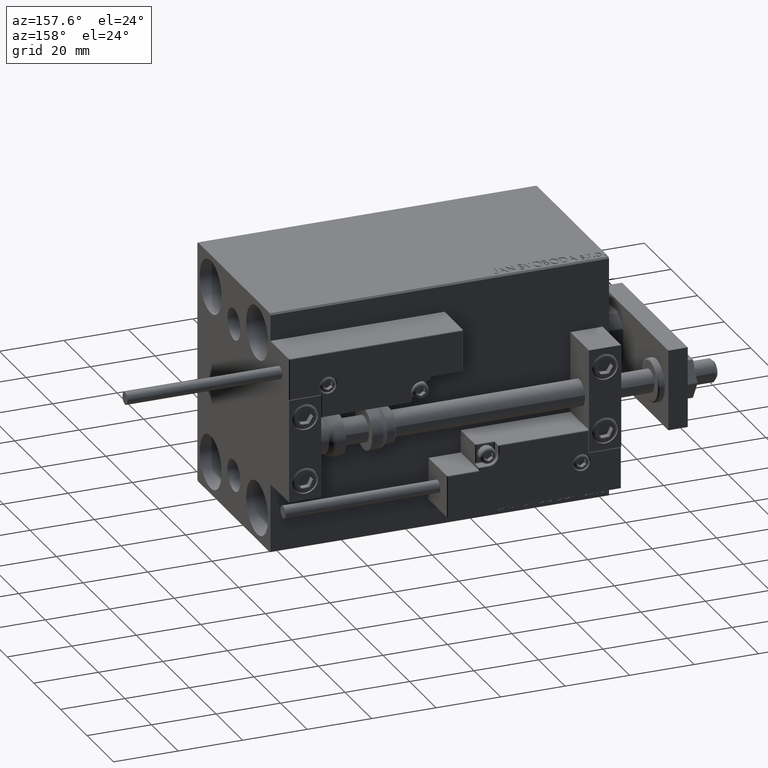
[diagram: clean part render]
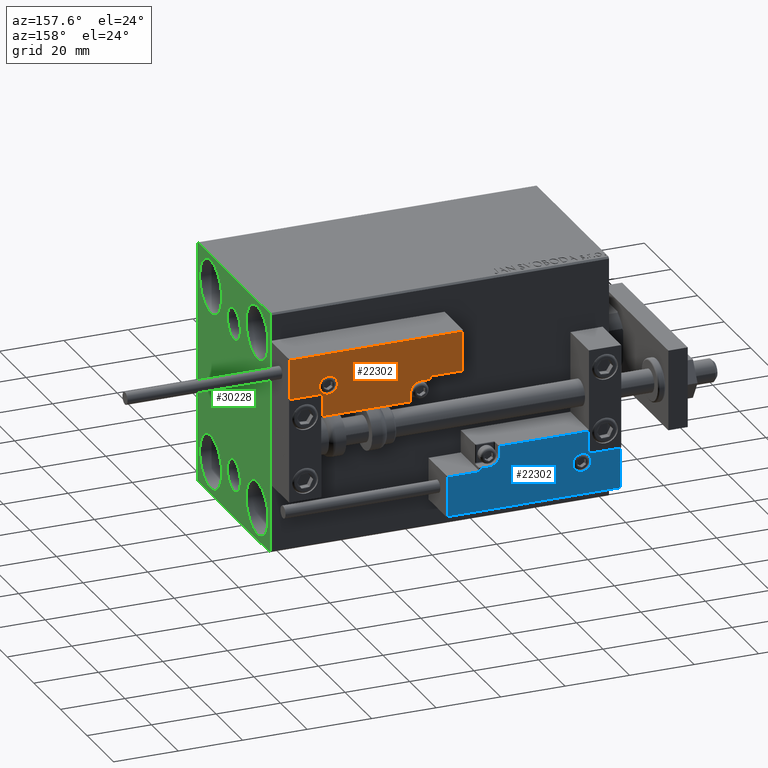
[diagram: same view with three faces highlighted in distinct colors, each labeled with its STEP entity id]
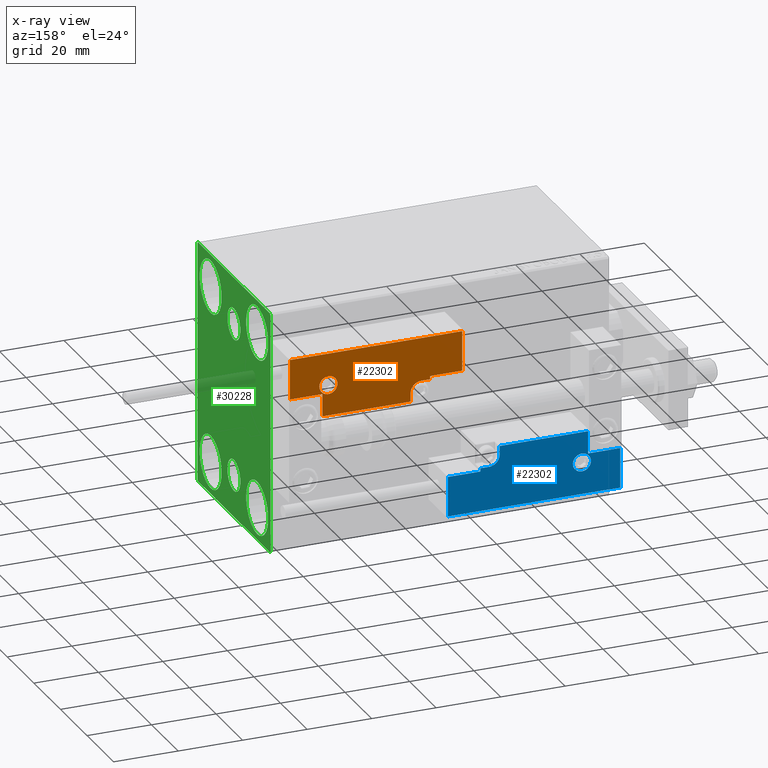
[diagram: x-ray of the same camera — body ghosted, the three highlighted faces saturated]
A machine part, auxiliary view with three faces highlighted in distinct colors.
The next image is the same camera in x-ray (body ghosted, the three faces saturated) — at least one of them is partly hidden behind the body in this view.
Their STEP definitions:

[orange] entity #22302 — the highlighted planar face has unit normal (0, 1, -0).
#29 = EDGE_CURVE ( 'NONE', #42501, #8746, #28065, .T. ) ;
#870 = ORIENTED_EDGE ( 'NONE', *, *, #16621, .T. ) ;
#2062 = VERTEX_POINT ( 'NONE', #37294 ) ;
#2681 = VECTOR ( 'NONE', #44411, 1000.000000000000000 ) ;
#2742 = VECTOR ( 'NONE', #9848, 1000.000000000000000 ) ;
#3233 = VECTOR ( 'NONE', #9415, 1000.000000000000000 ) ;
#3568 = VERTEX_POINT ( 'NONE', #37747 ) ;
#4890 = CARTESIAN_POINT ( 'NONE',  ( -26.69999999999993534, 19.70000000000002061, 14.00000000000000000 ) ) ;
#5292 = EDGE_CURVE ( 'NONE', #3568, #31690, #37111, .T. ) ;
#5373 = LINE ( 'NONE', #28575, #3233 ) ;
#5446 = DIRECTION ( 'NONE',  ( 0.000000000000000000, 1.000000000000000000, -0.000000000000000000 ) ) ;
#5642 = CARTESIAN_POINT ( 'NONE',  ( -11.99999999999994849, 9.800000000000004263, 14.00000000000000000 ) ) ;
#6202 = CARTESIAN_POINT ( 'NONE',  ( 0.000000000000000000, 0.000000000000000000, 14.00000000000000000 ) ) ;
#6582 = VERTEX_POINT ( 'NONE', #18031 ) ;
#7151 = CARTESIAN_POINT ( 'NONE',  ( 26.70000000000006324, 7.300000000000007816, 14.00000000000000000 ) ) ;
#7280 = AXIS2_PLACEMENT_3D ( 'NONE', #17827, #37504, #47882 ) ;
#7942 = ORIENTED_EDGE ( 'NONE', *, *, #18025, .T. ) ;
#7973 = VERTEX_POINT ( 'NONE', #18975 ) ;
#8400 = ORIENTED_EDGE ( 'NONE', *, *, #24188, .T. ) ;
#8734 = CARTESIAN_POINT ( 'NONE',  ( 26.70000000000006324, 20.00000000000001776, 14.00000000000000000 ) ) ;
#8746 = VERTEX_POINT ( 'NONE', #5642 ) ;
#9078 = LINE ( 'NONE', #17641, #16470 ) ;
#9415 = DIRECTION ( 'NONE',  ( -0.000000000000000000, 1.000000000000000000, -0.000000000000000000 ) ) ;
#9848 = DIRECTION ( 'NONE',  ( 9.912705577010318647E-16, 1.000000000000000000, 0.000000000000000000 ) ) ;
#10471 = EDGE_CURVE ( 'NONE', #7973, #2062, #13538, .T. ) ;
#10627 = ORIENTED_EDGE ( 'NONE', *, *, #10471, .T. ) ;
#10763 = CARTESIAN_POINT ( 'NONE',  ( 16.69999999999999929, 7.300000000000009592, 14.00000000000000000 ) ) ;
#10797 = VERTEX_POINT ( 'NONE', #4890 ) ;
#12913 = DIRECTION ( 'NONE',  ( -1.000000000000000000, 6.424901762877063495E-17, -0.000000000000000000 ) ) ;
#13538 = LINE ( 'NONE', #31983, #20223 ) ;
#13612 = DIRECTION ( 'NONE',  ( 1.000000000000000000, -1.734723475976796001E-16, 0.000000000000000000 ) ) ;
#13828 = CARTESIAN_POINT ( 'NONE',  ( 11.00000000000000000, 0.3000000000000032085, 14.00000000000000000 ) ) ;
#13921 = VECTOR ( 'NONE', #5446, 1000.000000000000000 ) ;
#14151 = ORIENTED_EDGE ( 'NONE', *, *, #35284, .T. ) ;
#14276 = EDGE_CURVE ( 'NONE', #47846, #42761, #32997, .T. ) ;
#14679 = EDGE_CURVE ( 'NONE', #18952, #45186, #40266, .T. ) ;
#15231 = EDGE_CURVE ( 'NONE', #45186, #10797, #35124, .T. ) ;
#16470 = VECTOR ( 'NONE', #13612, 1000.000000000000000 ) ;
#16521 = EDGE_LOOP ( 'NONE', ( #7942, #48864, #47063, #18900, #870, #17695, #8400, #48278, #41763, #22759, #10627 ) ) ;
#16563 = EDGE_CURVE ( 'NONE', #10797, #7973, #24969, .T. ) ;
#16621 = EDGE_CURVE ( 'NONE', #31690, #6582, #35827, .T. ) ;
#17392 = CARTESIAN_POINT ( 'NONE',  ( -17.59999999999994813, 9.800000000000004263, 14.00000000000000000 ) ) ;
#17641 = CARTESIAN_POINT ( 'NONE',  ( 27.00000000000006395, 7.300000000000007816, 14.00000000000000000 ) ) ;
#17695 = ORIENTED_EDGE ( 'NONE', *, *, #21179, .T. ) ;
#17827 = CARTESIAN_POINT ( 'NONE',  ( 13.99999999999999822, 3.000000000000002665, 14.00000000000000000 ) ) ;
#17845 = CARTESIAN_POINT ( 'NONE',  ( -16.69999999999999218, 3.252606517456513302E-15, 14.00000000000000000 ) ) ;
#17947 = VECTOR ( 'NONE', #29711, 1000.000000000000000 ) ;
#18025 = EDGE_CURVE ( 'NONE', #2062, #47846, #21629, .T. ) ;
#18031 = CARTESIAN_POINT ( 'NONE',  ( 16.69999999999999929, 6.300000000000003375, 14.00000000000000000 ) ) ;
#18106 = DIRECTION ( 'NONE',  ( 1.000000000000000000, 0.000000000000000000, 0.000000000000000000 ) ) ;
#18171 = ORIENTED_EDGE ( 'NONE', *, *, #29, .T. ) ;
#18900 = ORIENTED_EDGE ( 'NONE', *, *, #5292, .T. ) ;
#18952 = VERTEX_POINT ( 'NONE', #7151 ) ;
#18975 = CARTESIAN_POINT ( 'NONE',  ( -26.69999999999994600, 7.300000000000005151, 14.00000000000000000 ) ) ;
#19342 = EDGE_LOOP ( 'NONE', ( #14151, #18171 ) ) ;
#19546 = CARTESIAN_POINT ( 'NONE',  ( 13.99999999999999822, 6.300000000000001599, 14.00000000000000000 ) ) ;
#20223 = VECTOR ( 'NONE', #47126, 1000.000000000000000 ) ;
#20947 = DIRECTION ( 'NONE',  ( 1.000000000000000000, 5.782411586589357639E-16, -0.000000000000000000 ) ) ;
#21149 = VECTOR ( 'NONE', #12913, 1000.000000000000000 ) ;
#21179 = EDGE_CURVE ( 'NONE', #6582, #49733, #33308, .T. ) ;
#21571 = CIRCLE ( 'NONE', #23982, 2.800000000000000266 ) ;
#21629 = LINE ( 'NONE', #17845, #33366 ) ;
#22302 = ADVANCED_FACE ( 'NONE', ( #40524, #47869 ), #36736, .T. ) ;
#22759 = ORIENTED_EDGE ( 'NONE', *, *, #16563, .T. ) ;
#23982 = AXIS2_PLACEMENT_3D ( 'NONE', #35507, #28421, #31730 ) ;
#24188 = EDGE_CURVE ( 'NONE', #49733, #18952, #9078, .T. ) ;
#24346 = CARTESIAN_POINT ( 'NONE',  ( 10.69999999999999929, 0.3000000000000032085, 14.00000000000000000 ) ) ;
#24969 = LINE ( 'NONE', #40612, #2681 ) ;
#25214 = CARTESIAN_POINT ( 'NONE',  ( 17.00000000000000000, 6.300000000000003375, 14.00000000000000000 ) ) ;
#25378 = DIRECTION ( 'NONE',  ( -0.000000000000000000, 0.000000000000000000, 1.000000000000000000 ) ) ;
#26443 = AXIS2_PLACEMENT_3D ( 'NONE', #44869, #34002, #18106 ) ;
#26900 = AXIS2_PLACEMENT_3D ( 'NONE', #6202, #25378, #33209 ) ;
#28065 = CIRCLE ( 'NONE', #26443, 2.800000000000000266 ) ;
#28421 = DIRECTION ( 'NONE',  ( 0.000000000000000000, -0.000000000000000000, -1.000000000000000000 ) ) ;
#28575 = CARTESIAN_POINT ( 'NONE',  ( 10.69999999999999929, 3.000000000000003109, 14.00000000000000000 ) ) ;
#29711 = DIRECTION ( 'NONE',  ( 1.000000000000000000, -0.000000000000000000, 0.000000000000000000 ) ) ;
#31224 = CARTESIAN_POINT ( 'NONE',  ( -16.69999999999999218, 0.3000000000000032085, 14.00000000000000000 ) ) ;
#31690 = VERTEX_POINT ( 'NONE', #19546 ) ;
#31712 = VECTOR ( 'NONE', #20947, 1000.000000000000000 ) ;
#31730 = DIRECTION ( 'NONE',  ( 1.000000000000000000, 0.000000000000000000, 0.000000000000000000 ) ) ;
#31983 = CARTESIAN_POINT ( 'NONE',  ( -16.99999999999999289, 7.300000000000003375, 14.00000000000000000 ) ) ;
#32997 = LINE ( 'NONE', #13828, #17947 ) ;
#33209 = DIRECTION ( 'NONE',  ( 1.000000000000000000, 0.000000000000000000, 0.000000000000000000 ) ) ;
#33308 = LINE ( 'NONE', #48714, #2742 ) ;
#33366 = VECTOR ( 'NONE', #38011, 1000.000000000000000 ) ;
#34002 = DIRECTION ( 'NONE',  ( 0.000000000000000000, -0.000000000000000000, -1.000000000000000000 ) ) ;
#35124 = LINE ( 'NONE', #47251, #21149 ) ;
#35284 = EDGE_CURVE ( 'NONE', #8746, #42501, #21571, .T. ) ;
#35507 = CARTESIAN_POINT ( 'NONE',  ( -14.79999999999994920, 9.800000000000004263, 14.00000000000000000 ) ) ;
#35827 = LINE ( 'NONE', #25214, #31712 ) ;
#36736 = PLANE ( 'NONE',  #26900 ) ;
#37111 = CIRCLE ( 'NONE', #7280, 3.299999999999997158 ) ;
#37294 = CARTESIAN_POINT ( 'NONE',  ( -16.69999999999999218, 7.300000000000003375, 14.00000000000000000 ) ) ;
#37504 = DIRECTION ( 'NONE',  ( 0.000000000000000000, -0.000000000000000000, -1.000000000000000000 ) ) ;
#37747 = CARTESIAN_POINT ( 'NONE',  ( 10.69999999999999929, 3.000000000000003109, 14.00000000000000000 ) ) ;
#38011 = DIRECTION ( 'NONE',  ( 0.000000000000000000, -1.000000000000000000, 0.000000000000000000 ) ) ;
#40266 = LINE ( 'NONE', #8734, #13921 ) ;
#40524 = FACE_BOUND ( 'NONE', #19342, .T. ) ;
#40612 = CARTESIAN_POINT ( 'NONE',  ( -26.69999999999994600, 7.000000000000005329, 14.00000000000000000 ) ) ;
#41763 = ORIENTED_EDGE ( 'NONE', *, *, #15231, .T. ) ;
#42501 = VERTEX_POINT ( 'NONE', #17392 ) ;
#42548 = CARTESIAN_POINT ( 'NONE',  ( 26.70000000000006324, 19.70000000000001705, 14.00000000000000000 ) ) ;
#42761 = VERTEX_POINT ( 'NONE', #24346 ) ;
#44411 = DIRECTION ( 'NONE',  ( -8.006416042969869188E-16, -1.000000000000000000, 0.000000000000000000 ) ) ;
#44869 = CARTESIAN_POINT ( 'NONE',  ( -14.79999999999994920, 9.800000000000004263, 14.00000000000000000 ) ) ;
#45186 = VERTEX_POINT ( 'NONE', #42548 ) ;
#45658 = EDGE_CURVE ( 'NONE', #42761, #3568, #5373, .T. ) ;
#47063 = ORIENTED_EDGE ( 'NONE', *, *, #45658, .T. ) ;
#47126 = DIRECTION ( 'NONE',  ( 1.000000000000000000, -1.734723475976815230E-16, 0.000000000000000000 ) ) ;
#47251 = CARTESIAN_POINT ( 'NONE',  ( -26.99999999999993605, 19.70000000000002061, 14.00000000000000000 ) ) ;
#47846 = VERTEX_POINT ( 'NONE', #31224 ) ;
#47869 = FACE_OUTER_BOUND ( 'NONE', #16521, .T. ) ;
#47882 = DIRECTION ( 'NONE',  ( 1.000000000000000000, 0.000000000000000000, 0.000000000000000000 ) ) ;
#48278 = ORIENTED_EDGE ( 'NONE', *, *, #14679, .T. ) ;
#48714 = CARTESIAN_POINT ( 'NONE',  ( 16.69999999999999929, 7.000000000000009770, 14.00000000000000000 ) ) ;
#48864 = ORIENTED_EDGE ( 'NONE', *, *, #14276, .T. ) ;
#49733 = VERTEX_POINT ( 'NONE', #10763 ) ;

[blue] entity #22302 — the highlighted planar face has unit normal (-0, 1, -0).
#29 = EDGE_CURVE ( 'NONE', #42501, #8746, #28065, .T. ) ;
#870 = ORIENTED_EDGE ( 'NONE', *, *, #16621, .T. ) ;
#2062 = VERTEX_POINT ( 'NONE', #37294 ) ;
#2681 = VECTOR ( 'NONE', #44411, 1000.000000000000000 ) ;
#2742 = VECTOR ( 'NONE', #9848, 1000.000000000000000 ) ;
#3233 = VECTOR ( 'NONE', #9415, 1000.000000000000000 ) ;
#3568 = VERTEX_POINT ( 'NONE', #37747 ) ;
#4890 = CARTESIAN_POINT ( 'NONE',  ( -26.69999999999993534, 19.70000000000002061, 14.00000000000000000 ) ) ;
#5292 = EDGE_CURVE ( 'NONE', #3568, #31690, #37111, .T. ) ;
#5373 = LINE ( 'NONE', #28575, #3233 ) ;
#5446 = DIRECTION ( 'NONE',  ( 0.000000000000000000, 1.000000000000000000, -0.000000000000000000 ) ) ;
#5642 = CARTESIAN_POINT ( 'NONE',  ( -11.99999999999994849, 9.800000000000004263, 14.00000000000000000 ) ) ;
#6202 = CARTESIAN_POINT ( 'NONE',  ( 0.000000000000000000, 0.000000000000000000, 14.00000000000000000 ) ) ;
#6582 = VERTEX_POINT ( 'NONE', #18031 ) ;
#7151 = CARTESIAN_POINT ( 'NONE',  ( 26.70000000000006324, 7.300000000000007816, 14.00000000000000000 ) ) ;
#7280 = AXIS2_PLACEMENT_3D ( 'NONE', #17827, #37504, #47882 ) ;
#7942 = ORIENTED_EDGE ( 'NONE', *, *, #18025, .T. ) ;
#7973 = VERTEX_POINT ( 'NONE', #18975 ) ;
#8400 = ORIENTED_EDGE ( 'NONE', *, *, #24188, .T. ) ;
#8734 = CARTESIAN_POINT ( 'NONE',  ( 26.70000000000006324, 20.00000000000001776, 14.00000000000000000 ) ) ;
#8746 = VERTEX_POINT ( 'NONE', #5642 ) ;
#9078 = LINE ( 'NONE', #17641, #16470 ) ;
#9415 = DIRECTION ( 'NONE',  ( -0.000000000000000000, 1.000000000000000000, -0.000000000000000000 ) ) ;
#9848 = DIRECTION ( 'NONE',  ( 9.912705577010318647E-16, 1.000000000000000000, 0.000000000000000000 ) ) ;
#10471 = EDGE_CURVE ( 'NONE', #7973, #2062, #13538, .T. ) ;
#10627 = ORIENTED_EDGE ( 'NONE', *, *, #10471, .T. ) ;
#10763 = CARTESIAN_POINT ( 'NONE',  ( 16.69999999999999929, 7.300000000000009592, 14.00000000000000000 ) ) ;
#10797 = VERTEX_POINT ( 'NONE', #4890 ) ;
#12913 = DIRECTION ( 'NONE',  ( -1.000000000000000000, 6.424901762877063495E-17, -0.000000000000000000 ) ) ;
#13538 = LINE ( 'NONE', #31983, #20223 ) ;
#13612 = DIRECTION ( 'NONE',  ( 1.000000000000000000, -1.734723475976796001E-16, 0.000000000000000000 ) ) ;
#13828 = CARTESIAN_POINT ( 'NONE',  ( 11.00000000000000000, 0.3000000000000032085, 14.00000000000000000 ) ) ;
#13921 = VECTOR ( 'NONE', #5446, 1000.000000000000000 ) ;
#14151 = ORIENTED_EDGE ( 'NONE', *, *, #35284, .T. ) ;
#14276 = EDGE_CURVE ( 'NONE', #47846, #42761, #32997, .T. ) ;
#14679 = EDGE_CURVE ( 'NONE', #18952, #45186, #40266, .T. ) ;
#15231 = EDGE_CURVE ( 'NONE', #45186, #10797, #35124, .T. ) ;
#16470 = VECTOR ( 'NONE', #13612, 1000.000000000000000 ) ;
#16521 = EDGE_LOOP ( 'NONE', ( #7942, #48864, #47063, #18900, #870, #17695, #8400, #48278, #41763, #22759, #10627 ) ) ;
#16563 = EDGE_CURVE ( 'NONE', #10797, #7973, #24969, .T. ) ;
#16621 = EDGE_CURVE ( 'NONE', #31690, #6582, #35827, .T. ) ;
#17392 = CARTESIAN_POINT ( 'NONE',  ( -17.59999999999994813, 9.800000000000004263, 14.00000000000000000 ) ) ;
#17641 = CARTESIAN_POINT ( 'NONE',  ( 27.00000000000006395, 7.300000000000007816, 14.00000000000000000 ) ) ;
#17695 = ORIENTED_EDGE ( 'NONE', *, *, #21179, .T. ) ;
#17827 = CARTESIAN_POINT ( 'NONE',  ( 13.99999999999999822, 3.000000000000002665, 14.00000000000000000 ) ) ;
#17845 = CARTESIAN_POINT ( 'NONE',  ( -16.69999999999999218, 3.252606517456513302E-15, 14.00000000000000000 ) ) ;
#17947 = VECTOR ( 'NONE', #29711, 1000.000000000000000 ) ;
#18025 = EDGE_CURVE ( 'NONE', #2062, #47846, #21629, .T. ) ;
#18031 = CARTESIAN_POINT ( 'NONE',  ( 16.69999999999999929, 6.300000000000003375, 14.00000000000000000 ) ) ;
#18106 = DIRECTION ( 'NONE',  ( 1.000000000000000000, 0.000000000000000000, 0.000000000000000000 ) ) ;
#18171 = ORIENTED_EDGE ( 'NONE', *, *, #29, .T. ) ;
#18900 = ORIENTED_EDGE ( 'NONE', *, *, #5292, .T. ) ;
#18952 = VERTEX_POINT ( 'NONE', #7151 ) ;
#18975 = CARTESIAN_POINT ( 'NONE',  ( -26.69999999999994600, 7.300000000000005151, 14.00000000000000000 ) ) ;
#19342 = EDGE_LOOP ( 'NONE', ( #14151, #18171 ) ) ;
#19546 = CARTESIAN_POINT ( 'NONE',  ( 13.99999999999999822, 6.300000000000001599, 14.00000000000000000 ) ) ;
#20223 = VECTOR ( 'NONE', #47126, 1000.000000000000000 ) ;
#20947 = DIRECTION ( 'NONE',  ( 1.000000000000000000, 5.782411586589357639E-16, -0.000000000000000000 ) ) ;
#21149 = VECTOR ( 'NONE', #12913, 1000.000000000000000 ) ;
#21179 = EDGE_CURVE ( 'NONE', #6582, #49733, #33308, .T. ) ;
#21571 = CIRCLE ( 'NONE', #23982, 2.800000000000000266 ) ;
#21629 = LINE ( 'NONE', #17845, #33366 ) ;
#22302 = ADVANCED_FACE ( 'NONE', ( #40524, #47869 ), #36736, .T. ) ;
#22759 = ORIENTED_EDGE ( 'NONE', *, *, #16563, .T. ) ;
#23982 = AXIS2_PLACEMENT_3D ( 'NONE', #35507, #28421, #31730 ) ;
#24188 = EDGE_CURVE ( 'NONE', #49733, #18952, #9078, .T. ) ;
#24346 = CARTESIAN_POINT ( 'NONE',  ( 10.69999999999999929, 0.3000000000000032085, 14.00000000000000000 ) ) ;
#24969 = LINE ( 'NONE', #40612, #2681 ) ;
#25214 = CARTESIAN_POINT ( 'NONE',  ( 17.00000000000000000, 6.300000000000003375, 14.00000000000000000 ) ) ;
#25378 = DIRECTION ( 'NONE',  ( -0.000000000000000000, 0.000000000000000000, 1.000000000000000000 ) ) ;
#26443 = AXIS2_PLACEMENT_3D ( 'NONE', #44869, #34002, #18106 ) ;
#26900 = AXIS2_PLACEMENT_3D ( 'NONE', #6202, #25378, #33209 ) ;
#28065 = CIRCLE ( 'NONE', #26443, 2.800000000000000266 ) ;
#28421 = DIRECTION ( 'NONE',  ( 0.000000000000000000, -0.000000000000000000, -1.000000000000000000 ) ) ;
#28575 = CARTESIAN_POINT ( 'NONE',  ( 10.69999999999999929, 3.000000000000003109, 14.00000000000000000 ) ) ;
#29711 = DIRECTION ( 'NONE',  ( 1.000000000000000000, -0.000000000000000000, 0.000000000000000000 ) ) ;
#31224 = CARTESIAN_POINT ( 'NONE',  ( -16.69999999999999218, 0.3000000000000032085, 14.00000000000000000 ) ) ;
#31690 = VERTEX_POINT ( 'NONE', #19546 ) ;
#31712 = VECTOR ( 'NONE', #20947, 1000.000000000000000 ) ;
#31730 = DIRECTION ( 'NONE',  ( 1.000000000000000000, 0.000000000000000000, 0.000000000000000000 ) ) ;
#31983 = CARTESIAN_POINT ( 'NONE',  ( -16.99999999999999289, 7.300000000000003375, 14.00000000000000000 ) ) ;
#32997 = LINE ( 'NONE', #13828, #17947 ) ;
#33209 = DIRECTION ( 'NONE',  ( 1.000000000000000000, 0.000000000000000000, 0.000000000000000000 ) ) ;
#33308 = LINE ( 'NONE', #48714, #2742 ) ;
#33366 = VECTOR ( 'NONE', #38011, 1000.000000000000000 ) ;
#34002 = DIRECTION ( 'NONE',  ( 0.000000000000000000, -0.000000000000000000, -1.000000000000000000 ) ) ;
#35124 = LINE ( 'NONE', #47251, #21149 ) ;
#35284 = EDGE_CURVE ( 'NONE', #8746, #42501, #21571, .T. ) ;
#35507 = CARTESIAN_POINT ( 'NONE',  ( -14.79999999999994920, 9.800000000000004263, 14.00000000000000000 ) ) ;
#35827 = LINE ( 'NONE', #25214, #31712 ) ;
#36736 = PLANE ( 'NONE',  #26900 ) ;
#37111 = CIRCLE ( 'NONE', #7280, 3.299999999999997158 ) ;
#37294 = CARTESIAN_POINT ( 'NONE',  ( -16.69999999999999218, 7.300000000000003375, 14.00000000000000000 ) ) ;
#37504 = DIRECTION ( 'NONE',  ( 0.000000000000000000, -0.000000000000000000, -1.000000000000000000 ) ) ;
#37747 = CARTESIAN_POINT ( 'NONE',  ( 10.69999999999999929, 3.000000000000003109, 14.00000000000000000 ) ) ;
#38011 = DIRECTION ( 'NONE',  ( 0.000000000000000000, -1.000000000000000000, 0.000000000000000000 ) ) ;
#40266 = LINE ( 'NONE', #8734, #13921 ) ;
#40524 = FACE_BOUND ( 'NONE', #19342, .T. ) ;
#40612 = CARTESIAN_POINT ( 'NONE',  ( -26.69999999999994600, 7.000000000000005329, 14.00000000000000000 ) ) ;
#41763 = ORIENTED_EDGE ( 'NONE', *, *, #15231, .T. ) ;
#42501 = VERTEX_POINT ( 'NONE', #17392 ) ;
#42548 = CARTESIAN_POINT ( 'NONE',  ( 26.70000000000006324, 19.70000000000001705, 14.00000000000000000 ) ) ;
#42761 = VERTEX_POINT ( 'NONE', #24346 ) ;
#44411 = DIRECTION ( 'NONE',  ( -8.006416042969869188E-16, -1.000000000000000000, 0.000000000000000000 ) ) ;
#44869 = CARTESIAN_POINT ( 'NONE',  ( -14.79999999999994920, 9.800000000000004263, 14.00000000000000000 ) ) ;
#45186 = VERTEX_POINT ( 'NONE', #42548 ) ;
#45658 = EDGE_CURVE ( 'NONE', #42761, #3568, #5373, .T. ) ;
#47063 = ORIENTED_EDGE ( 'NONE', *, *, #45658, .T. ) ;
#47126 = DIRECTION ( 'NONE',  ( 1.000000000000000000, -1.734723475976815230E-16, 0.000000000000000000 ) ) ;
#47251 = CARTESIAN_POINT ( 'NONE',  ( -26.99999999999993605, 19.70000000000002061, 14.00000000000000000 ) ) ;
#47846 = VERTEX_POINT ( 'NONE', #31224 ) ;
#47869 = FACE_OUTER_BOUND ( 'NONE', #16521, .T. ) ;
#47882 = DIRECTION ( 'NONE',  ( 1.000000000000000000, 0.000000000000000000, 0.000000000000000000 ) ) ;
#48278 = ORIENTED_EDGE ( 'NONE', *, *, #14679, .T. ) ;
#48714 = CARTESIAN_POINT ( 'NONE',  ( 16.69999999999999929, 7.000000000000009770, 14.00000000000000000 ) ) ;
#48864 = ORIENTED_EDGE ( 'NONE', *, *, #14276, .T. ) ;
#49733 = VERTEX_POINT ( 'NONE', #10763 ) ;

[green] entity #30228 — the highlighted planar face has unit normal (1, 0, 0).
#47 = EDGE_LOOP ( 'NONE', ( #362, #5140 ) ) ;
#362 = ORIENTED_EDGE ( 'NONE', *, *, #19906, .T. ) ;
#586 = EDGE_CURVE ( 'NONE', #7955, #41156, #34515, .T. ) ;
#607 = VERTEX_POINT ( 'NONE', #14472 ) ;
#983 = EDGE_CURVE ( 'NONE', #33027, #16402, #15569, .T. ) ;
#1226 = VECTOR ( 'NONE', #44176, 1000.000000000000114 ) ;
#1431 = CARTESIAN_POINT ( 'NONE',  ( 105.0000000000000000, -17.50000000000000355, -27.50000000000000355 ) ) ;
#1515 = EDGE_CURVE ( 'NONE', #607, #29177, #37755, .T. ) ;
#1707 = CARTESIAN_POINT ( 'NONE',  ( 105.0000000000000000, 17.50000000000000355, 19.25000000000000000 ) ) ;
#2125 = DIRECTION ( 'NONE',  ( 0.000000000000000000, 0.000000000000000000, 1.000000000000000000 ) ) ;
#2272 = CARTESIAN_POINT ( 'NONE',  ( 105.0000000000000000, -32.25000000000000000, 32.25000000000000000 ) ) ;
#2380 = DIRECTION ( 'NONE',  ( -0.000000000000000000, 0.7071067811865378028, -0.7071067811865573427 ) ) ;
#2775 = CARTESIAN_POINT ( 'NONE',  ( 105.0000000000000000, 32.24999999999999289, -32.24999999999999289 ) ) ;
#2956 = FACE_BOUND ( 'NONE', #47, .T. ) ;
#3147 = VERTEX_POINT ( 'NONE', #38048 ) ;
#3183 = AXIS2_PLACEMENT_3D ( 'NONE', #49134, #14800, #10524 ) ;
#3201 = DIRECTION ( 'NONE',  ( 1.000000000000000000, 0.000000000000000000, 0.000000000000000000 ) ) ;
#3214 = CARTESIAN_POINT ( 'NONE',  ( 105.0000000000000000, 27.50000000000000355, -37.50000000000000000 ) ) ;
#3237 = CIRCLE ( 'NONE', #32140, 8.249999999999992895 ) ;
#3248 = VECTOR ( 'NONE', #2380, 1000.000000000000000 ) ;
#3369 = DIRECTION ( 'NONE',  ( 0.000000000000000000, 0.000000000000000000, 1.000000000000000000 ) ) ;
#3445 = FACE_BOUND ( 'NONE', #18851, .T. ) ;
#3548 = EDGE_CURVE ( 'NONE', #23880, #38384, #10474, .T. ) ;
#3564 = CIRCLE ( 'NONE', #26120, 8.249999999999992895 ) ;
#3574 = CARTESIAN_POINT ( 'NONE',  ( 105.0000000000000000, 3.000384657911015074E-15, -29.35999999999999233 ) ) ;
#4426 = CARTESIAN_POINT ( 'NONE',  ( 105.0000000000000000, -27.00000000000000355, 37.50000000000000000 ) ) ;
#4439 = VERTEX_POINT ( 'NONE', #1707 ) ;
#4827 = LINE ( 'NONE', #20226, #6333 ) ;
#4845 = DIRECTION ( 'NONE',  ( 1.000000000000000000, 0.000000000000000000, 0.000000000000000000 ) ) ;
#5140 = ORIENTED_EDGE ( 'NONE', *, *, #19472, .T. ) ;
#5597 = VECTOR ( 'NONE', #21616, 1000.000000000000000 ) ;
#5606 = EDGE_CURVE ( 'NONE', #38318, #41855, #17528, .T. ) ;
#5819 = VERTEX_POINT ( 'NONE', #7899 ) ;
#5884 = CARTESIAN_POINT ( 'NONE',  ( 105.0000000000000000, 3.000384657911015074E-15, -24.49999999999999289 ) ) ;
#6087 = EDGE_LOOP ( 'NONE', ( #22075, #37389 ) ) ;
#6218 = DIRECTION ( 'NONE',  ( 0.000000000000000000, 0.000000000000000000, 1.000000000000000000 ) ) ;
#6244 = DIRECTION ( 'NONE',  ( 0.000000000000000000, -9.251858538542970348E-17, 1.000000000000000000 ) ) ;
#6281 = EDGE_CURVE ( 'NONE', #37668, #33027, #29686, .T. ) ;
#6333 = VECTOR ( 'NONE', #9118, 1000.000000000000000 ) ;
#6657 = CARTESIAN_POINT ( 'NONE',  ( 105.0000000000000000, -17.49999999999999645, 27.49999999999999645 ) ) ;
#6717 = CARTESIAN_POINT ( 'NONE',  ( 105.0000000000000000, 17.49999999999999645, -27.50000000000000355 ) ) ;
#6733 = AXIS2_PLACEMENT_3D ( 'NONE', #49276, #14698, #11392 ) ;
#7478 = LINE ( 'NONE', #24115, #26905 ) ;
#7732 = FACE_BOUND ( 'NONE', #45911, .T. ) ;
#7899 = CARTESIAN_POINT ( 'NONE',  ( 105.0000000000000000, -17.49999999999999645, 19.25000000000000000 ) ) ;
#7955 = VERTEX_POINT ( 'NONE', #3574 ) ;
#8008 = DIRECTION ( 'NONE',  ( 0.000000000000000000, 0.000000000000000000, 1.000000000000000000 ) ) ;
#8398 = CIRCLE ( 'NONE', #10017, 8.250000000000000000 ) ;
#9118 = DIRECTION ( 'NONE',  ( 0.000000000000000000, 1.000000000000000000, 0.000000000000000000 ) ) ;
#9204 = DIRECTION ( 'NONE',  ( -1.000000000000000000, -0.000000000000000000, -0.000000000000000000 ) ) ;
#9468 = ORIENTED_EDGE ( 'NONE', *, *, #27428, .T. ) ;
#9804 = DIRECTION ( 'NONE',  ( 0.000000000000000000, 0.000000000000000000, 1.000000000000000000 ) ) ;
#10017 = AXIS2_PLACEMENT_3D ( 'NONE', #6717, #17831, #6218 ) ;
#10474 = CIRCLE ( 'NONE', #3183, 8.250000000000000000 ) ;
#10524 = DIRECTION ( 'NONE',  ( 0.000000000000000000, 0.000000000000000000, 1.000000000000000000 ) ) ;
#10564 = DIRECTION ( 'NONE',  ( 0.000000000000000000, 0.000000000000000000, -1.000000000000000000 ) ) ;
#11392 = DIRECTION ( 'NONE',  ( 0.000000000000000000, 0.000000000000000000, 1.000000000000000000 ) ) ;
#11944 = CARTESIAN_POINT ( 'NONE',  ( 105.0000000000000000, 17.49999999999999645, -27.50000000000000355 ) ) ;
#12202 = DIRECTION ( 'NONE',  ( 0.000000000000000000, 0.000000000000000000, 1.000000000000000000 ) ) ;
#12235 = CIRCLE ( 'NONE', #33187, 4.859999999999999432 ) ;
#12301 = EDGE_CURVE ( 'NONE', #5819, #32461, #48513, .T. ) ;
#12334 = EDGE_CURVE ( 'NONE', #29177, #607, #12235, .T. ) ;
#13171 = DIRECTION ( 'NONE',  ( 0.000000000000000000, 0.000000000000000000, -1.000000000000000000 ) ) ;
#14229 = DIRECTION ( 'NONE',  ( 1.000000000000000000, 0.000000000000000000, -0.000000000000000000 ) ) ;
#14472 = CARTESIAN_POINT ( 'NONE',  ( 105.0000000000000000, -2.976515330312223406E-15, 27.86000000000000654 ) ) ;
#14698 = DIRECTION ( 'NONE',  ( -1.000000000000000000, -0.000000000000000000, -0.000000000000000000 ) ) ;
#14800 = DIRECTION ( 'NONE',  ( -1.000000000000000000, -0.000000000000000000, -0.000000000000000000 ) ) ;
#14988 = DIRECTION ( 'NONE',  ( -1.000000000000000000, -0.000000000000000000, -0.000000000000000000 ) ) ;
#15305 = FACE_BOUND ( 'NONE', #28042, .T. ) ;
#15569 = LINE ( 'NONE', #19355, #24073 ) ;
#15900 = CARTESIAN_POINT ( 'NONE',  ( 105.0000000000000000, 26.99999999999999645, 37.50000000000000711 ) ) ;
#16340 = CARTESIAN_POINT ( 'NONE',  ( 105.0000000000000000, 3.000384657911015074E-15, -24.49999999999999289 ) ) ;
#16402 = VERTEX_POINT ( 'NONE', #4426 ) ;
#16955 = CARTESIAN_POINT ( 'NONE',  ( 105.0000000000000000, -3.571693674697836683E-15, 23.00000000000000711 ) ) ;
#16967 = AXIS2_PLACEMENT_3D ( 'NONE', #16340, #31999, #32489 ) ;
#17020 = CARTESIAN_POINT ( 'NONE',  ( 105.0000000000000000, -27.00000000000001776, -37.50000000000000000 ) ) ;
#17079 = ORIENTED_EDGE ( 'NONE', *, *, #21230, .T. ) ;
#17528 = LINE ( 'NONE', #36937, #3248 ) ;
#17817 = EDGE_CURVE ( 'NONE', #23480, #4439, #28489, .T. ) ;
#17831 = DIRECTION ( 'NONE',  ( -1.000000000000000000, -0.000000000000000000, -0.000000000000000000 ) ) ;
#17871 = DIRECTION ( 'NONE',  ( -1.000000000000000000, -0.000000000000000000, -0.000000000000000000 ) ) ;
#18122 = DIRECTION ( 'NONE',  ( 1.000000000000000000, 0.000000000000000000, 0.000000000000000000 ) ) ;
#18173 = ORIENTED_EDGE ( 'NONE', *, *, #12301, .T. ) ;
#18200 = EDGE_CURVE ( 'NONE', #3147, #38318, #7478, .T. ) ;
#18851 = EDGE_LOOP ( 'NONE', ( #22846, #28463 ) ) ;
#18852 = DIRECTION ( 'NONE',  ( 0.000000000000000000, -1.000000000000000000, -1.261617073437677999E-16 ) ) ;
#19355 = CARTESIAN_POINT ( 'NONE',  ( 105.0000000000000000, 27.49999999999999645, 37.50000000000000711 ) ) ;
#19472 = EDGE_CURVE ( 'NONE', #45900, #44008, #8398, .T. ) ;
#19906 = EDGE_CURVE ( 'NONE', #44008, #45900, #35015, .T. ) ;
#20210 = CARTESIAN_POINT ( 'NONE',  ( 105.0000000000000000, 17.49999999999999645, -19.25000000000000355 ) ) ;
#20226 = CARTESIAN_POINT ( 'NONE',  ( 105.0000000000000000, -27.50000000000000355, -37.50000000000000000 ) ) ;
#20430 = CARTESIAN_POINT ( 'NONE',  ( 105.0000000000000000, 3.595563002296627957E-15, -19.63999999999999346 ) ) ;
#21230 = EDGE_CURVE ( 'NONE', #38335, #21517, #37327, .T. ) ;
#21517 = VERTEX_POINT ( 'NONE', #24918 ) ;
#21616 = DIRECTION ( 'NONE',  ( -0.000000000000000000, -0.7071067811865524577, 0.7071067811865426878 ) ) ;
#22075 = ORIENTED_EDGE ( 'NONE', *, *, #586, .F. ) ;
#22846 = ORIENTED_EDGE ( 'NONE', *, *, #41847, .T. ) ;
#23246 = AXIS2_PLACEMENT_3D ( 'NONE', #16955, #4845, #13171 ) ;
#23480 = VERTEX_POINT ( 'NONE', #35454 ) ;
#23647 = EDGE_LOOP ( 'NONE', ( #18173, #49581 ) ) ;
#23676 = EDGE_CURVE ( 'NONE', #32461, #5819, #3564, .T. ) ;
#23736 = VECTOR ( 'NONE', #6244, 1000.000000000000000 ) ;
#23880 = VERTEX_POINT ( 'NONE', #31872 ) ;
#24073 = VECTOR ( 'NONE', #18852, 1000.000000000000000 ) ;
#24115 = CARTESIAN_POINT ( 'NONE',  ( 105.0000000000000000, -27.50000000000000355, 37.50000000000000000 ) ) ;
#24499 = VECTOR ( 'NONE', #25483, 1000.000000000000114 ) ;
#24918 = CARTESIAN_POINT ( 'NONE',  ( 105.0000000000000000, 27.50000000000000355, -36.99999999999998579 ) ) ;
#25110 = AXIS2_PLACEMENT_3D ( 'NONE', #49414, #17871, #9804 ) ;
#25186 = CARTESIAN_POINT ( 'NONE',  ( 105.0000000000000000, -3.571693674697836683E-15, 23.00000000000000711 ) ) ;
#25228 = LINE ( 'NONE', #2272, #1226 ) ;
#25483 = DIRECTION ( 'NONE',  ( -0.000000000000000000, 0.7071067811865474617, 0.7071067811865474617 ) ) ;
#25902 = CARTESIAN_POINT ( 'NONE',  ( 105.0000000000000000, 17.49999999999999645, -35.75000000000000711 ) ) ;
#25955 = EDGE_CURVE ( 'NONE', #16402, #3147, #25228, .T. ) ;
#26120 = AXIS2_PLACEMENT_3D ( 'NONE', #6657, #33666, #3369 ) ;
#26407 = PLANE ( 'NONE',  #39115 ) ;
#26905 = VECTOR ( 'NONE', #28144, 1000.000000000000000 ) ;
#27125 = ORIENTED_EDGE ( 'NONE', *, *, #5606, .T. ) ;
#27184 = CARTESIAN_POINT ( 'NONE',  ( 105.0000000000000000, -17.49999999999999645, 35.74999999999999289 ) ) ;
#27428 = EDGE_CURVE ( 'NONE', #21517, #37668, #38021, .T. ) ;
#28042 = EDGE_LOOP ( 'NONE', ( #28822, #44839 ) ) ;
#28144 = DIRECTION ( 'NONE',  ( 0.000000000000000000, 0.000000000000000000, -1.000000000000000000 ) ) ;
#28224 = CIRCLE ( 'NONE', #16967, 4.859999999999999432 ) ;
#28233 = ORIENTED_EDGE ( 'NONE', *, *, #32575, .T. ) ;
#28463 = ORIENTED_EDGE ( 'NONE', *, *, #17817, .T. ) ;
#28489 = CIRCLE ( 'NONE', #6733, 8.249999999999992895 ) ;
#28822 = ORIENTED_EDGE ( 'NONE', *, *, #12334, .F. ) ;
#29177 = VERTEX_POINT ( 'NONE', #43301 ) ;
#29662 = AXIS2_PLACEMENT_3D ( 'NONE', #5884, #14229, #48298 ) ;
#29686 = LINE ( 'NONE', #48634, #5597 ) ;
#30228 = ADVANCED_FACE ( 'NONE', ( #15305, #46098, #2956, #41315, #3445, #7732, #49883 ), #26407, .T. ) ;
#31521 = EDGE_LOOP ( 'NONE', ( #32022, #44068, #45445, #27125, #45758, #17079, #9468, #39827 ) ) ;
#31872 = CARTESIAN_POINT ( 'NONE',  ( 105.0000000000000000, -17.50000000000000355, -19.25000000000000355 ) ) ;
#31999 = DIRECTION ( 'NONE',  ( 1.000000000000000000, 0.000000000000000000, -0.000000000000000000 ) ) ;
#32022 = ORIENTED_EDGE ( 'NONE', *, *, #983, .T. ) ;
#32140 = AXIS2_PLACEMENT_3D ( 'NONE', #43778, #9204, #2125 ) ;
#32461 = VERTEX_POINT ( 'NONE', #27184 ) ;
#32489 = DIRECTION ( 'NONE',  ( 0.000000000000000000, 0.000000000000000000, 1.000000000000000000 ) ) ;
#32575 = EDGE_CURVE ( 'NONE', #38384, #23880, #39997, .T. ) ;
#32941 = CARTESIAN_POINT ( 'NONE',  ( 105.0000000000000000, -17.50000000000000355, -35.75000000000000711 ) ) ;
#33027 = VERTEX_POINT ( 'NONE', #15900 ) ;
#33187 = AXIS2_PLACEMENT_3D ( 'NONE', #25186, #18122, #10564 ) ;
#33666 = DIRECTION ( 'NONE',  ( -1.000000000000000000, -0.000000000000000000, -0.000000000000000000 ) ) ;
#34234 = DIRECTION ( 'NONE',  ( 0.000000000000000000, 0.000000000000000000, -1.000000000000000000 ) ) ;
#34515 = CIRCLE ( 'NONE', #29662, 4.859999999999999432 ) ;
#35015 = CIRCLE ( 'NONE', #40674, 8.250000000000000000 ) ;
#35454 = CARTESIAN_POINT ( 'NONE',  ( 105.0000000000000000, 17.50000000000000355, 35.74999999999999289 ) ) ;
#35494 = CARTESIAN_POINT ( 'NONE',  ( 105.0000000000000000, 26.99999999999998934, -37.50000000000000000 ) ) ;
#36937 = CARTESIAN_POINT ( 'NONE',  ( 105.0000000000000000, -32.25000000000038369, -32.24999999999949551 ) ) ;
#37327 = LINE ( 'NONE', #2775, #24499 ) ;
#37389 = ORIENTED_EDGE ( 'NONE', *, *, #44798, .F. ) ;
#37668 = VERTEX_POINT ( 'NONE', #40957 ) ;
#37755 = CIRCLE ( 'NONE', #23246, 4.859999999999999432 ) ;
#37780 = EDGE_CURVE ( 'NONE', #41855, #38335, #4827, .T. ) ;
#38021 = LINE ( 'NONE', #3214, #23736 ) ;
#38048 = CARTESIAN_POINT ( 'NONE',  ( 105.0000000000000000, -27.50000000000000355, 37.00000000000000000 ) ) ;
#38318 = VERTEX_POINT ( 'NONE', #39766 ) ;
#38335 = VERTEX_POINT ( 'NONE', #35494 ) ;
#38352 = AXIS2_PLACEMENT_3D ( 'NONE', #1431, #39540, #8008 ) ;
#38384 = VERTEX_POINT ( 'NONE', #32941 ) ;
#39115 = AXIS2_PLACEMENT_3D ( 'NONE', #49152, #3201, #34234 ) ;
#39540 = DIRECTION ( 'NONE',  ( -1.000000000000000000, -0.000000000000000000, -0.000000000000000000 ) ) ;
#39766 = CARTESIAN_POINT ( 'NONE',  ( 105.0000000000000000, -27.50000000000000355, -37.00000000000000000 ) ) ;
#39827 = ORIENTED_EDGE ( 'NONE', *, *, #6281, .T. ) ;
#39997 = CIRCLE ( 'NONE', #38352, 8.250000000000000000 ) ;
#40674 = AXIS2_PLACEMENT_3D ( 'NONE', #11944, #14988, #12202 ) ;
#40957 = CARTESIAN_POINT ( 'NONE',  ( 105.0000000000000000, 27.49999999999999645, 37.00000000000001421 ) ) ;
#41156 = VERTEX_POINT ( 'NONE', #20430 ) ;
#41315 = FACE_BOUND ( 'NONE', #23647, .T. ) ;
#41847 = EDGE_CURVE ( 'NONE', #4439, #23480, #3237, .T. ) ;
#41855 = VERTEX_POINT ( 'NONE', #17020 ) ;
#43301 = CARTESIAN_POINT ( 'NONE',  ( 105.0000000000000000, -3.571693674697836683E-15, 18.14000000000000767 ) ) ;
#43778 = CARTESIAN_POINT ( 'NONE',  ( 105.0000000000000000, 17.50000000000000355, 27.49999999999999645 ) ) ;
#44008 = VERTEX_POINT ( 'NONE', #25902 ) ;
#44068 = ORIENTED_EDGE ( 'NONE', *, *, #25955, .T. ) ;
#44176 = DIRECTION ( 'NONE',  ( 0.000000000000000000, -0.7071067811865474617, -0.7071067811865474617 ) ) ;
#44798 = EDGE_CURVE ( 'NONE', #41156, #7955, #28224, .T. ) ;
#44839 = ORIENTED_EDGE ( 'NONE', *, *, #1515, .F. ) ;
#45445 = ORIENTED_EDGE ( 'NONE', *, *, #18200, .T. ) ;
#45758 = ORIENTED_EDGE ( 'NONE', *, *, #37780, .T. ) ;
#45900 = VERTEX_POINT ( 'NONE', #20210 ) ;
#45911 = EDGE_LOOP ( 'NONE', ( #28233, #47164 ) ) ;
#46098 = FACE_BOUND ( 'NONE', #6087, .T. ) ;
#47164 = ORIENTED_EDGE ( 'NONE', *, *, #3548, .T. ) ;
#48298 = DIRECTION ( 'NONE',  ( 0.000000000000000000, 0.000000000000000000, 1.000000000000000000 ) ) ;
#48513 = CIRCLE ( 'NONE', #25110, 8.249999999999992895 ) ;
#48634 = CARTESIAN_POINT ( 'NONE',  ( 105.0000000000000000, 32.24999999999981526, 32.25000000000025580 ) ) ;
#49134 = CARTESIAN_POINT ( 'NONE',  ( 105.0000000000000000, -17.50000000000000355, -27.50000000000000355 ) ) ;
#49152 = CARTESIAN_POINT ( 'NONE',  ( 105.0000000000000000, 0.000000000000000000, 0.000000000000000000 ) ) ;
#49276 = CARTESIAN_POINT ( 'NONE',  ( 105.0000000000000000, 17.50000000000000355, 27.49999999999999645 ) ) ;
#49414 = CARTESIAN_POINT ( 'NONE',  ( 105.0000000000000000, -17.49999999999999645, 27.49999999999999645 ) ) ;
#49581 = ORIENTED_EDGE ( 'NONE', *, *, #23676, .T. ) ;
#49883 = FACE_OUTER_BOUND ( 'NONE', #31521, .T. ) ;